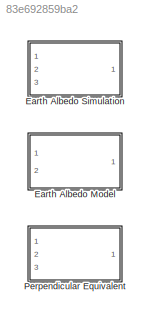
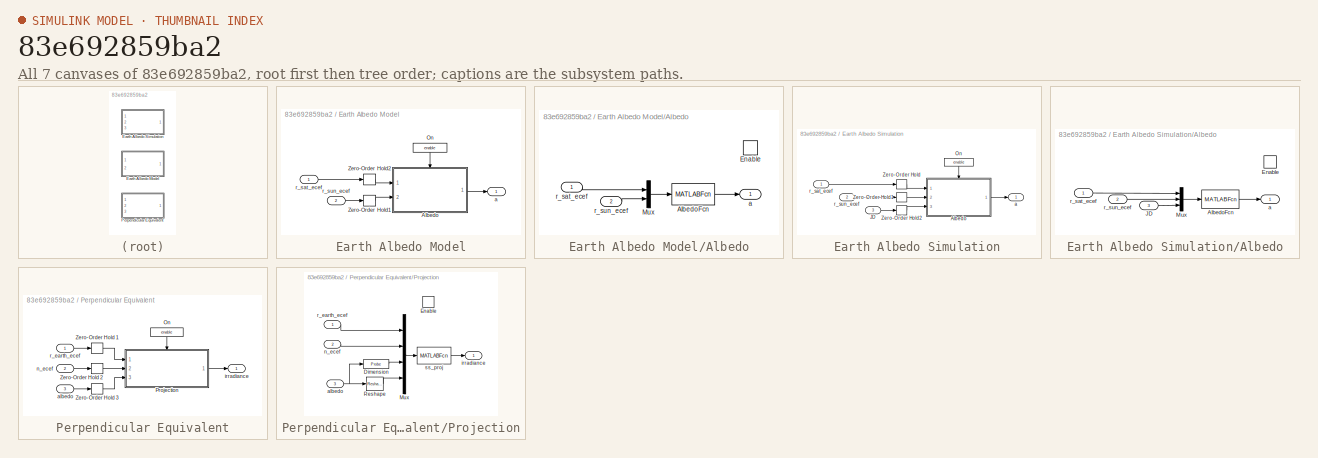
[diagram: thumbnail index - all 7 canvases of the model, root first then tree order]
MODEL slx_83e692859ba2
KIND library
CONFIG AbsTol = auto
CONFIG FixedStep = auto
CONFIG MaxStep = auto
CONFIG MinStep = auto
CONFIG RelTol = 1e-3
CONFIG SampleTimeConstraint = Unconstrained
CONFIG Solver = VariableStepAuto
CONFIG SolverMode = SingleTasking
CONFIG SolverName = VariableStepAuto
CONFIG StartTime = 0.0
CONFIG StopTime = 10.0
BLOCK [SubSystem] Earth Albedo Model
  Ports = [2, 1]
  RequestExecContextInheritance = off
  TreatAsAtomicUnit = on
  Variant = off
BLOCK [SubSystem] Earth Albedo Model/Albedo
  Ports = [2, 1, 1]
  RequestExecContextInheritance = off
  Variant = off
BLOCK [MATLABFcn] Earth Albedo Model/Albedo/AlbedoFcn
  MATLABFcn = albedo_wrapper(u(1:3),u(4:6),refldata,redfac)
  Output1D = off
  OutputDimensions = [sy sx]
  OutputSignalType = real
  Ports = [1, 1]
BLOCK [EnablePort] Earth Albedo Model/Albedo/Enable
  Ports = []
  StatesWhenEnabling = reset
BLOCK [Mux] Earth Albedo Model/Albedo/Mux
  DisplayOption = bar
  Inputs = 2
  Ports = [2, 1]
BLOCK [Outport] Earth Albedo Model/Albedo/a
  IconDisplay = Port number
  InitialOutput = 0
  OutputWhenDisabled = reset
BLOCK [Inport] Earth Albedo Model/Albedo/r_sat_ecef
  IconDisplay = Port number
  PortDimensions = 3
BLOCK [Inport] Earth Albedo Model/Albedo/r_sun_ecef
  IconDisplay = Port number
  Port = 2
  PortDimensions = 3
BLOCK [Constant] Earth Albedo Model/On
  Value = enable
BLOCK [ZeroOrderHold] Earth Albedo Model/Zero-Order Hold1
  SampleTime = Ts
BLOCK [ZeroOrderHold] Earth Albedo Model/Zero-Order Hold2
  SampleTime = Ts
BLOCK [Outport] Earth Albedo Model/a
  IconDisplay = Port number
BLOCK [Inport] Earth Albedo Model/r_sat_ecef
  IconDisplay = Port number
  SampleTime = Ts
BLOCK [Inport] Earth Albedo Model/r_sun_ecef
  IconDisplay = Port number
  Port = 2
  SampleTime = Ts
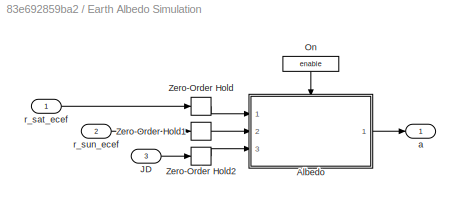
BLOCK [SubSystem] Earth Albedo Simulation
  Ports = [3, 1]
  RequestExecContextInheritance = off
  TreatAsAtomicUnit = on
  Variant = off
BLOCK [SubSystem] Earth Albedo Simulation/Albedo
  Ports = [3, 1, 1]
  RequestExecContextInheritance = off
  Variant = off
BLOCK [MATLABFcn] Earth Albedo Simulation/Albedo/AlbedoFcn
  MATLABFcn = albedo_wrapper(u(1:3),u(4:6),u(7),redfac,pathstr)
  Output1D = off
  OutputDimensions = [sy sx]
  OutputSignalType = real
  Ports = [1, 1]
BLOCK [EnablePort] Earth Albedo Simulation/Albedo/Enable
  Ports = []
  StatesWhenEnabling = reset
BLOCK [Inport] Earth Albedo Simulation/Albedo/JD
  IconDisplay = Port number
  Port = 3
  PortDimensions = 1
BLOCK [Mux] Earth Albedo Simulation/Albedo/Mux
  DisplayOption = bar
  Inputs = 3
  Ports = [3, 1]
BLOCK [Outport] Earth Albedo Simulation/Albedo/a
  IconDisplay = Port number
  InitialOutput = 0
  OutputWhenDisabled = reset
BLOCK [Inport] Earth Albedo Simulation/Albedo/r_sat_ecef
  IconDisplay = Port number
  PortDimensions = 3
BLOCK [Inport] Earth Albedo Simulation/Albedo/r_sun_ecef
  IconDisplay = Port number
  Port = 2
  PortDimensions = 3
BLOCK [Inport] Earth Albedo Simulation/JD
  IconDisplay = Port number
  Port = 3
  PortDimensions = 1
  SampleTime = Ts
  SignalType = real
BLOCK [Constant] Earth Albedo Simulation/On
  Value = enable
BLOCK [ZeroOrderHold] Earth Albedo Simulation/Zero-Order Hold
  SampleTime = Ts
BLOCK [ZeroOrderHold] Earth Albedo Simulation/Zero-Order Hold1
  SampleTime = Ts
BLOCK [ZeroOrderHold] Earth Albedo Simulation/Zero-Order Hold2
  SampleTime = Ts
BLOCK [Outport] Earth Albedo Simulation/a
  IconDisplay = Port number
BLOCK [Inport] Earth Albedo Simulation/r_sat_ecef
  IconDisplay = Port number
  PortDimensions = 3
  SampleTime = Ts
  SignalType = real
BLOCK [Inport] Earth Albedo Simulation/r_sun_ecef
  IconDisplay = Port number
  Port = 2
  PortDimensions = 3
  SampleTime = Ts
  SignalType = real
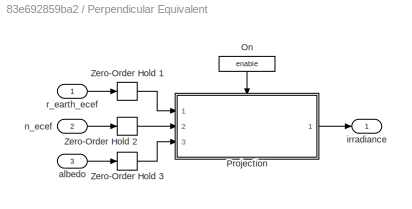
BLOCK [SubSystem] Perpendicular Equivalent
  Ports = [3, 1]
  RequestExecContextInheritance = off
  Variant = off
BLOCK [Constant] Perpendicular Equivalent/On
  Value = enable
BLOCK [SubSystem] Perpendicular Equivalent/Projection
  Ports = [3, 1, 1]
  RequestExecContextInheritance = off
  TreatAsAtomicUnit = on
  Variant = off
BLOCK [Probe] Perpendicular Equivalent/Projection/Dimension
  Ports = [1, 1]
  ProbeComplexSignal = off
  ProbeSampleTime = off
  ProbeSignalDimensions = on
  ProbeWidth = off
BLOCK [EnablePort] Perpendicular Equivalent/Projection/Enable
  Ports = []
BLOCK [Mux] Perpendicular Equivalent/Projection/Mux
  DisplayOption = bar
  Ports = [4, 1]
BLOCK [Reference] Perpendicular Equivalent/Projection/Reshape  REF=simulink/Math
Operations/Reshape
  Ports = [1, 1]
  SourceBlock = simulink/Math\nOperations/Reshape
  SourceType = Reshape
BLOCK [Inport] Perpendicular Equivalent/Projection/albedo
  IconDisplay = Port number
  Port = 3
BLOCK [Outport] Perpendicular Equivalent/Projection/irradiance
  IconDisplay = Port number
BLOCK [Inport] Perpendicular Equivalent/Projection/n_ecef
  IconDisplay = Port number
  Port = 2
BLOCK [Inport] Perpendicular Equivalent/Projection/r_earth_ecef
  IconDisplay = Port number
BLOCK [MATLABFcn] Perpendicular Equivalent/Projection/ss_proj
  MATLABFcn = ss_proj(u(1:3),u(4:6),reshape(u(9:u(7)*u(8)+8),u(7),u(8)) );
  OutputDimensions = 1
  Ports = [1, 1]
BLOCK [ZeroOrderHold] Perpendicular Equivalent/Zero-Order Hold 1
  SampleTime = Ts
BLOCK [ZeroOrderHold] Perpendicular Equivalent/Zero-Order Hold 2
  SampleTime = Ts
BLOCK [ZeroOrderHold] Perpendicular Equivalent/Zero-Order Hold 3
  SampleTime = Ts
BLOCK [Inport] Perpendicular Equivalent/albedo
  IconDisplay = Port number
  Port = 3
  SampleTime = Ts
  SignalType = real
BLOCK [Outport] Perpendicular Equivalent/irradiance
  IconDisplay = Port number
  PortDimensions = 1
  SampleTime = Ts
  SignalType = real
BLOCK [Inport] Perpendicular Equivalent/n_ecef
  IconDisplay = Port number
  Port = 2
  PortDimensions = 3
  SampleTime = Ts
  SignalType = real
BLOCK [Inport] Perpendicular Equivalent/r_earth_ecef
  IconDisplay = Port number
  PortDimensions = 3
  SampleTime = Ts
  SignalType = real
LINE Earth Albedo Model/Albedo/AlbedoFcn:1 -> Earth Albedo Model/Albedo/a:1
LINE Earth Albedo Model/Albedo/Mux:1 -> Earth Albedo Model/Albedo/AlbedoFcn:1
LINE Earth Albedo Model/Albedo/r_sat_ecef:1 -> Earth Albedo Model/Albedo/Mux:1
LINE Earth Albedo Model/Albedo/r_sun_ecef:1 -> Earth Albedo Model/Albedo/Mux:2
LINE Earth Albedo Model/Albedo:1 -> Earth Albedo Model/a:1
LINE Earth Albedo Model/On:1 -> Earth Albedo Model/Albedo:enable
LINE Earth Albedo Model/Zero-Order Hold1:1 -> Earth Albedo Model/Albedo:2
LINE Earth Albedo Model/Zero-Order Hold2:1 -> Earth Albedo Model/Albedo:1
LINE Earth Albedo Model/r_sat_ecef:1 -> Earth Albedo Model/Zero-Order Hold2:1
LINE Earth Albedo Model/r_sun_ecef:1 -> Earth Albedo Model/Zero-Order Hold1:1
LINE Earth Albedo Simulation/Albedo/AlbedoFcn:1 -> Earth Albedo Simulation/Albedo/a:1
LINE Earth Albedo Simulation/Albedo/JD:1 -> Earth Albedo Simulation/Albedo/Mux:3
LINE Earth Albedo Simulation/Albedo/Mux:1 -> Earth Albedo Simulation/Albedo/AlbedoFcn:1
LINE Earth Albedo Simulation/Albedo/r_sat_ecef:1 -> Earth Albedo Simulation/Albedo/Mux:1
LINE Earth Albedo Simulation/Albedo/r_sun_ecef:1 -> Earth Albedo Simulation/Albedo/Mux:2
LINE Earth Albedo Simulation/Albedo:1 -> Earth Albedo Simulation/a:1
LINE Earth Albedo Simulation/JD:1 -> Earth Albedo Simulation/Zero-Order Hold2:1
LINE Earth Albedo Simulation/On:1 -> Earth Albedo Simulation/Albedo:enable
LINE Earth Albedo Simulation/Zero-Order Hold1:1 -> Earth Albedo Simulation/Albedo:2
LINE Earth Albedo Simulation/Zero-Order Hold2:1 -> Earth Albedo Simulation/Albedo:3
LINE Earth Albedo Simulation/Zero-Order Hold:1 -> Earth Albedo Simulation/Albedo:1
LINE Earth Albedo Simulation/r_sat_ecef:1 -> Earth Albedo Simulation/Zero-Order Hold:1
LINE Earth Albedo Simulation/r_sun_ecef:1 -> Earth Albedo Simulation/Zero-Order Hold1:1
LINE Perpendicular Equivalent/On:1 -> Perpendicular Equivalent/Projection:enable
LINE Perpendicular Equivalent/Projection/Dimension:1 -> Perpendicular Equivalent/Projection/Mux:3
LINE Perpendicular Equivalent/Projection/Mux:1 -> Perpendicular Equivalent/Projection/ss_proj:1
LINE Perpendicular Equivalent/Projection/Reshape:1 -> Perpendicular Equivalent/Projection/Mux:4
NET Perpendicular Equivalent/Projection/albedo:1 -> Perpendicular Equivalent/Projection/Dimension:1, Perpendicular Equivalent/Projection/Reshape:1
LINE Perpendicular Equivalent/Projection/n_ecef:1 -> Perpendicular Equivalent/Projection/Mux:2
LINE Perpendicular Equivalent/Projection/r_earth_ecef:1 -> Perpendicular Equivalent/Projection/Mux:1
LINE Perpendicular Equivalent/Projection/ss_proj:1 -> Perpendicular Equivalent/Projection/irradiance:1
LINE Perpendicular Equivalent/Projection:1 -> Perpendicular Equivalent/irradiance:1
LINE Perpendicular Equivalent/Zero-Order Hold 1:1 -> Perpendicular Equivalent/Projection:1
LINE Perpendicular Equivalent/Zero-Order Hold 2:1 -> Perpendicular Equivalent/Projection:2
LINE Perpendicular Equivalent/Zero-Order Hold 3:1 -> Perpendicular Equivalent/Projection:3
LINE Perpendicular Equivalent/albedo:1 -> Perpendicular Equivalent/Zero-Order Hold 3:1
LINE Perpendicular Equivalent/n_ecef:1 -> Perpendicular Equivalent/Zero-Order Hold 2:1
LINE Perpendicular Equivalent/r_earth_ecef:1 -> Perpendicular Equivalent/Zero-Order Hold 1:1
note: NET lines group one-source signal fan-out (src -> all destinations, sorted); 1:1 wires keep LINE
